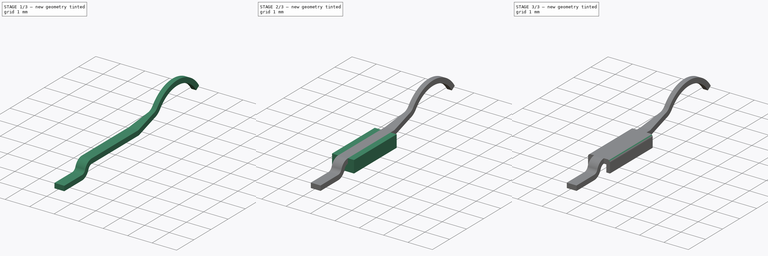
[diagram: build sequence overview — one tinted view per stage of 3, left to right]
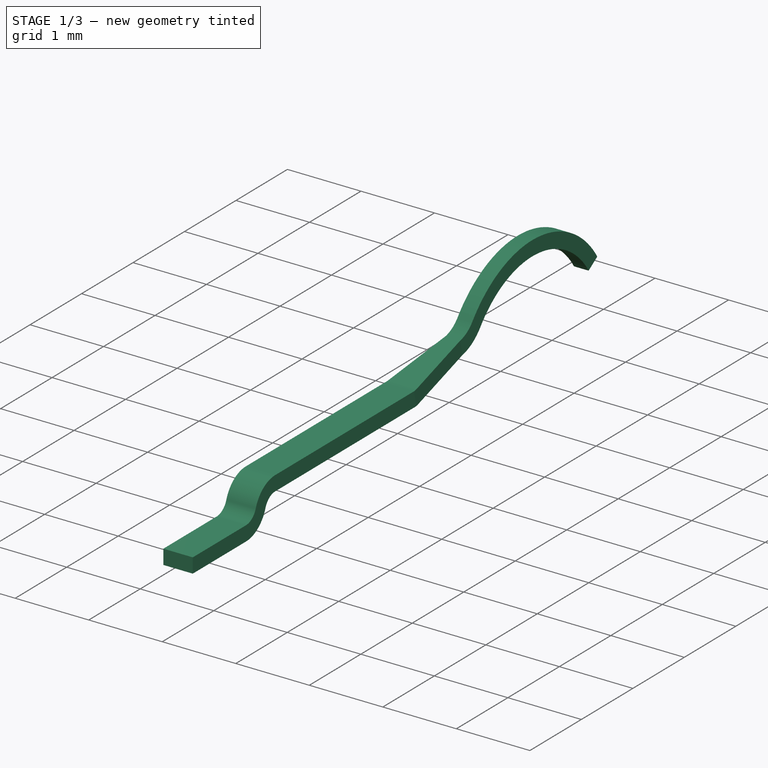
[diagram: stage 1 of 3 — iso view after this stage's code; geometry added in this stage tinted green]
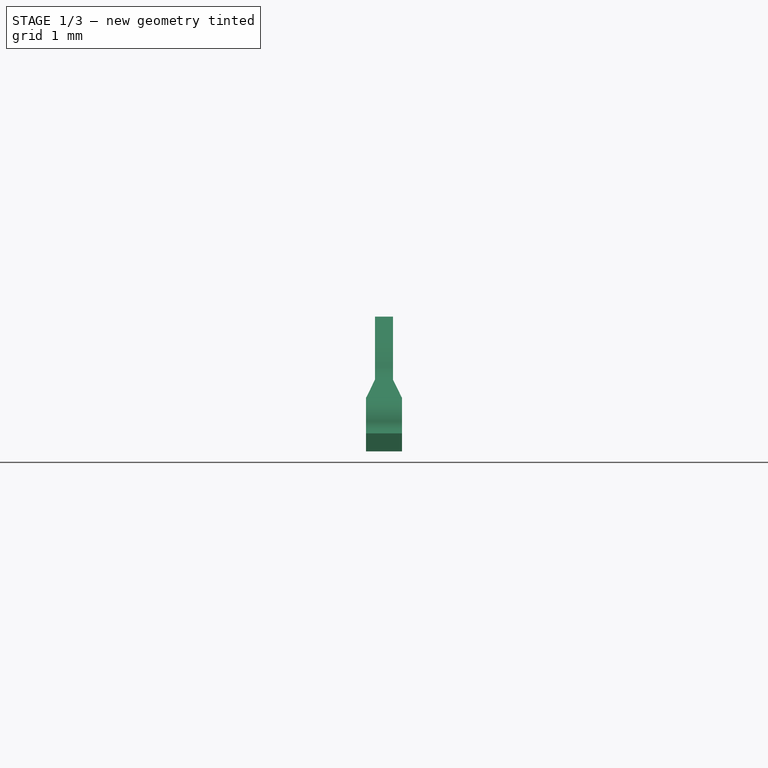
[diagram: stage 1 of 3 — front view after this stage's code; geometry added in this stage tinted green]
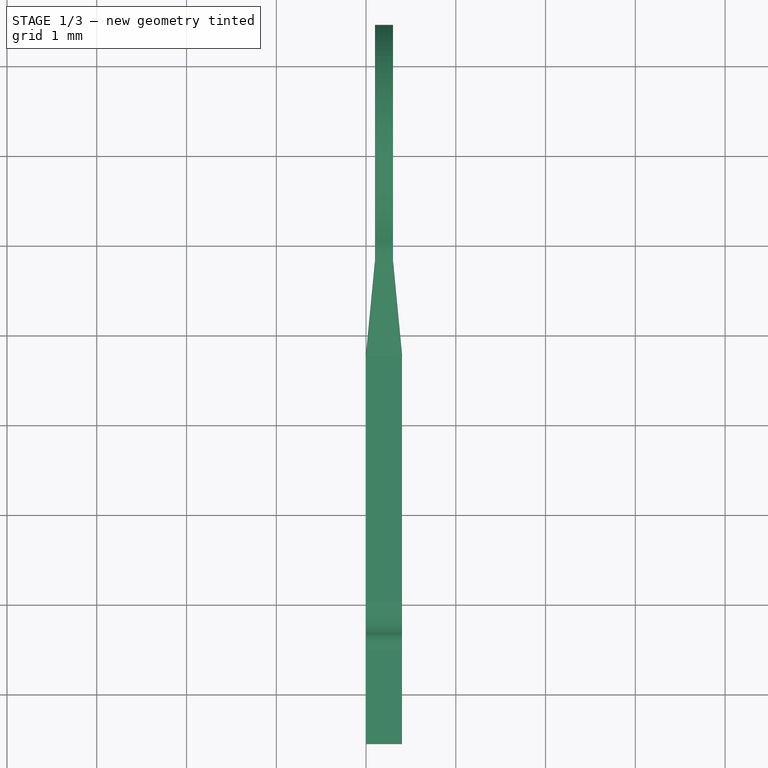
[diagram: stage 1 of 3 — top view after this stage's code; geometry added in this stage tinted green]
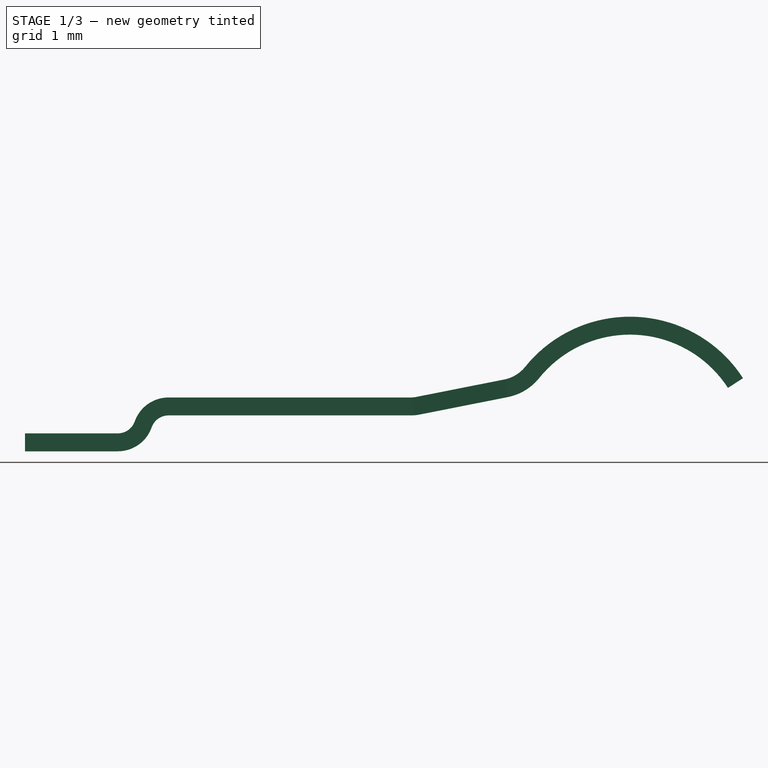
[diagram: stage 1 of 3 — right view after this stage's code; geometry added in this stage tinted green]
FCSTD DOCUMENT  (FreeCAD 0.17R12607 (Git))
Label: MR07C-06200 Pin
License: All rights reserved
LicenseURL: http://en.wikipedia.org/wiki/All_rights_reserved
objects: Sketcher::SketchObject×4, PartDesign::Pad×2, PartDesign::Pocket×2, PartDesign::Fillet×1, PartDesign::Body×1
note: 14 computed .brp shape members not serialized (recipe doc carries the construction recipe); baked Part::Feature solids carry a one-line shape summary decoded from their .brp

FEATURE [Sketcher::SketchObject] Sketch
  MapMode = 5
  Placement = pos=(0,0,0) rot=(0.57735,0.57735,0.57735;2.0944rad)
  Support = -> [YZ_Plane]
  sketch-geometry (19):
    g0: LineSegment StartX=-0.55 StartY=0 StartZ=0 EndX=0.484315 EndY=0 EndZ=0
    g1: LineSegment StartX=0.484311 StartY=0.2 StartZ=0 EndX=-0.55 EndY=0.2 EndZ=0
    g2: LineSegment StartX=-0.55 StartY=0.2 StartZ=0 EndX=-0.55 EndY=0 EndZ=0
    g3: ArcOfCircle CenterX=0.484315 CenterY=0.4 CenterZ=0 NormalX=0 NormalY=0 NormalZ=1 AngleXU=0 Radius=0.2 StartAngle=4.71237 EndAngle=5.94335
    g4: ArcOfCircle CenterX=0.484315 CenterY=0.4 CenterZ=0 NormalX=0 NormalY=0 NormalZ=1 AngleXU=0 Radius=0.4 StartAngle=4.71239 EndAngle=5.94333
    g5: LineSegment StartX=0.86144 StartY=0.266671 StartZ=0 EndX=0.861435 EndY=0.266658 EndZ=0
    g6: ArcOfCircle CenterX=1.05 CenterY=0.2 CenterZ=0 NormalX=0 NormalY=0 NormalZ=1 AngleXU=0 Radius=0.2 StartAngle=1.5708 EndAngle=2.80173
    g7: ArcOfCircle CenterX=1.05 CenterY=0.2 CenterZ=0 NormalX=0 NormalY=0 NormalZ=1 AngleXU=0 Radius=0.4 StartAngle=1.5708 EndAngle=2.80176
    g8: LineSegment StartX=1.05 StartY=0.6 StartZ=0 EndX=3.75 EndY=0.6 EndZ=0
    g9: LineSegment StartX=1.05 StartY=0.4 StartZ=0 EndX=3.75 EndY=0.4 EndZ=0
    g10: ArcOfCircle CenterX=3.75 CenterY=0.9 CenterZ=0 NormalX=0 NormalY=0 NormalZ=1 AngleXU=0 Radius=0.3 StartAngle=4.71239 EndAngle=4.90792
    g11: ArcOfCircle CenterX=3.75 CenterY=0.9 CenterZ=0 NormalX=0 NormalY=0 NormalZ=1 AngleXU=0 Radius=0.5 StartAngle=4.71239 EndAngle=4.90792
    g12: LineSegment StartX=3.80829 StartY=0.605716 StartZ=0 EndX=4.78923 EndY=0.8 EndZ=0
    g13: LineSegment StartX=3.84714 StartY=0.409527 StartZ=0 EndX=4.82809 EndY=0.603811 EndZ=0
    g14: ArcOfCircle CenterX=4.71152 CenterY=1.19238 CenterZ=0 NormalX=0 NormalY=0 NormalZ=1 AngleXU=0 Radius=0.4 StartAngle=4.90792 EndAngle=5.60476
    g15: ArcOfCircle CenterX=4.71152 CenterY=1.19238 CenterZ=0 NormalX=0 NormalY=0 NormalZ=1 AngleXU=0 Radius=0.6 StartAngle=4.90792 EndAngle=5.60475
    g16: ArcOfCircle CenterX=6.19079 CenterY=0 CenterZ=0 NormalX=0 NormalY=0 NormalZ=1 AngleXU=0 Radius=1.5 StartAngle=0.574477 EndAngle=2.46317
    g17: ArcOfCircle CenterX=6.19079 CenterY=0 CenterZ=0 NormalX=0 NormalY=0 NormalZ=1 AngleXU=0 Radius=1.3 StartAngle=0.574477 EndAngle=2.46317
    g18: LineSegment StartX=7.45 StartY=0.815094 StartZ=0 EndX=7.2821 EndY=0.706415 EndZ=0
  constraints (62):
    c: Coincident(g1,g2)
    c: Coincident(g2,g0)
    c: Horizontal(g0)
    c: Horizontal(g1)
    c: Vertical(g2)
    c: DistanceY(g0,g1) = 0.2
    c: Coincident(g4,g3)
    c: Coincident(g4,g0)
    c: Coincident(g5,g4)
    c: Tangent(g5,g4)
    c: Coincident(g6,g5)
    c: Coincident(g7,g6)
    c: Horizontal(g8)
    c: Coincident(g9,g6)
    c: Horizontal(g9)
    c: DistanceX(g8,g8) = 2.7
    c: Coincident(g8,g7)
    c: Equal(g8,g9)
    c: Tangent(g8,g7)
    c: Coincident(g10,g8)
    c: Coincident(g11,g10)
    c: Coincident(g11,g9)
    c: Tangent(g10,g8)
    c: Coincident(g12,g10)
    c: Coincident(g13,g11)
    c: Tangent(g12,g10)
    c: Parallel(g12,g13)
    c: Tangent(g13,g11)
    c: Equal(g12,g13)
    c: Coincident(g14,g12)
    c: Coincident(g15,g14)
    c: Coincident(g15,g13)
    c: Tangent(g14,g12)
    c: Coincident(g16,g14)
    c: Coincident(g17,g16)
    c: Coincident(g18,g16)
    c: Coincident(g18,g17)
    c: Coincident(g15,g17)
    c: Perpendicular(g16,g18)
    c: Distance(g6,g2) = 1.6
    c: DistanceX(g0) = -0.55
    c: DistanceY(g0) = 0
    c: Distance(g16,g2) = 8
    c: PointOnObject(g16,g-1)
    c: Radius(g15) = 0.6
    c: Radius(g6) = 0.2
    c: Coincident(g7,g3)
    c: Distance(g7,g-1) = 0.6
    c: DistanceY(g-1,g12) = 0.8
    c: Tangent(g11,g9)
    c: Distance(g13) = 1
    c: Tangent(g14,g16)
    c: Radius(g17) = 1.3
    c: Radius(g16) = 1.5
    c: Tangent(g4,g0)
    c: Radius(g3) = 0.2
    c: Tangent(g7,g3)
    c: Radius(g10) = 0.3
    c: Tangent(g5,g6)
    c: Coincident(g3,g1)
    c: Tangent(g3,g1)
    c: Radius(g7) = 0.4
FEATURE [PartDesign::Pad] Pad
  Length = 0.4
  Length2 = 100
  Placement = pos=(0,0,0) rot=(0.57735,0.57735,0.57735;2.0944rad)
  Profile = -> Sketch
  Type = 0
FEATURE [Sketcher::SketchObject] Sketch001
  ExternalGeometry = -> [Pad]
  MapMode = 5
  Placement = pos=(0,0.0283096,-0.142936) rot=(0.097146,0.097146,-0.990518;1.58032rad)
  Support = -> [Pad]
  sketch-geometry (8):
    g0: LineSegment StartX=-3.79512 StartY=0.4 StartZ=0 EndX=-4.8534 EndY=0.3 EndZ=0
    g1: LineSegment StartX=-4.8534 StartY=0.3 StartZ=0 EndX=-7.4664 EndY=0.3 EndZ=0
    g2: LineSegment StartX=-7.4664 StartY=0.3 StartZ=0 EndX=-7.4664 EndY=0.4 EndZ=0
    g3: LineSegment StartX=-7.4664 StartY=0.4 StartZ=0 EndX=-3.79512 EndY=0.4 EndZ=0
    g4: LineSegment StartX=-3.79512 StartY=0 StartZ=0 EndX=-4.8534 EndY=0.1 EndZ=0
    g5: LineSegment StartX=-4.8534 StartY=0.1 StartZ=0 EndX=-7.4664 EndY=0.1 EndZ=0
    g6: LineSegment StartX=-7.4664 StartY=0.1 StartZ=0 EndX=-7.4664 EndY=0 EndZ=0
    g7: LineSegment StartX=-7.4664 StartY=0 StartZ=0 EndX=-3.79512 EndY=0 EndZ=0
  constraints (20):
    c: Coincident(g-3,g0)
    c: PointOnObject(g0,g-4)
    c: Coincident(g0,g1)
    c: Horizontal(g1)
    c: Coincident(g1,g2)
    c: Coincident(g2,g-5)
    c: Coincident(g2,g3)
    c: Coincident(g3,g0)
    c: Coincident(g-3,g4)
    c: PointOnObject(g4,g-4)
    c: Coincident(g4,g5)
    c: PointOnObject(g5,g-5)
    c: Horizontal(g5)
    c: Coincident(g5,g6)
    c: Coincident(g6,g-5)
    c: Coincident(g6,g7)
    c: Coincident(g7,g4)
    c: PointOnObject(g2,g-5)
    c: Equal(g2,g6)
    c: Distance(g6) = 0.1
FEATURE [PartDesign::Pocket] Pocket
  BaseFeature = -> Pad
  Length = 5
  Midplane = true
  Placement = pos=(0,0,0) rot=(0.57735,0.57735,0.57735;2.0944rad)
  Profile = -> Sketch001
  Type = 1
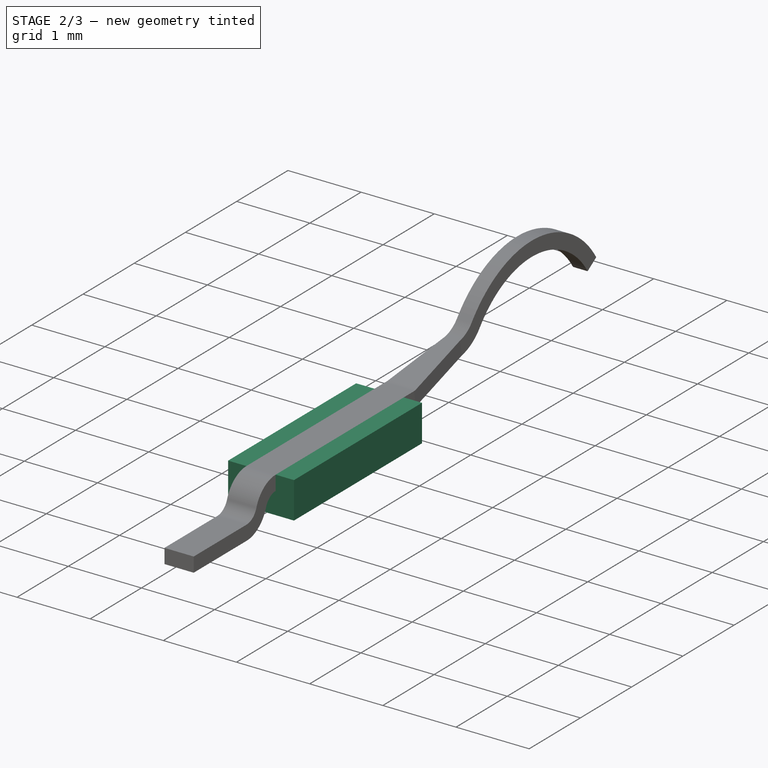
[diagram: stage 2 of 3 — iso view after this stage's code; geometry added in this stage tinted green]
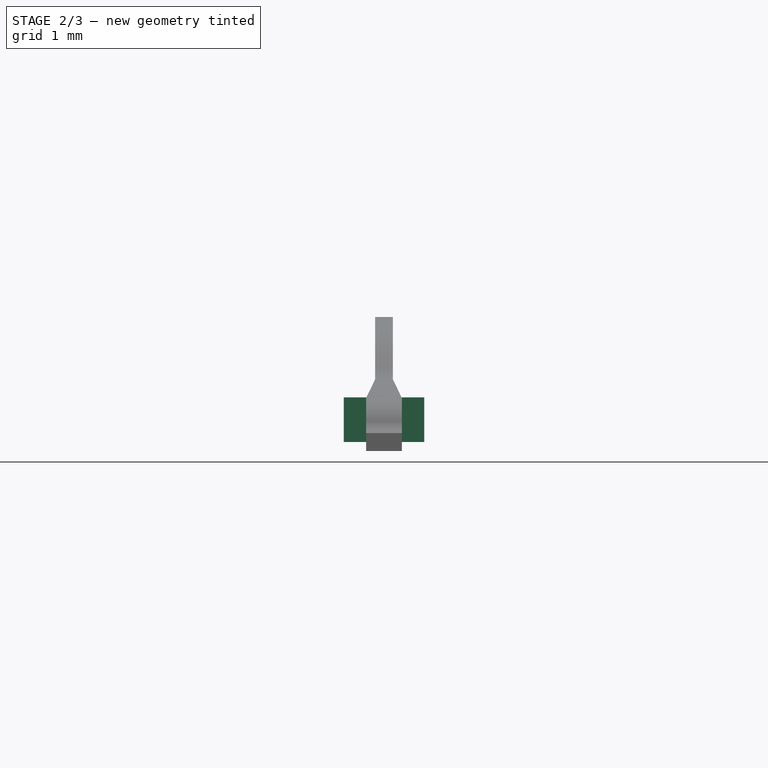
[diagram: stage 2 of 3 — front view after this stage's code; geometry added in this stage tinted green]
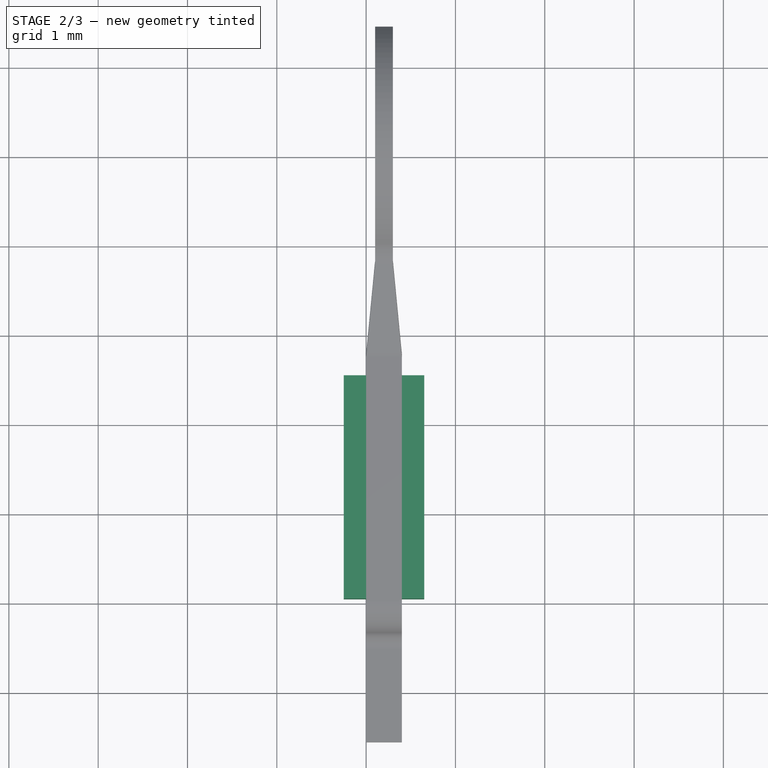
[diagram: stage 2 of 3 — top view after this stage's code; geometry added in this stage tinted green]
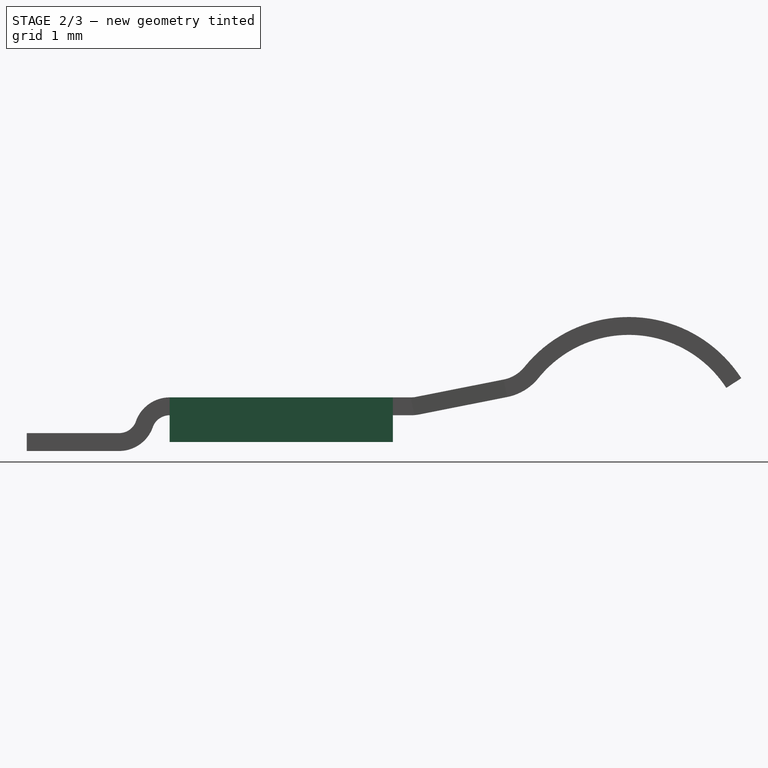
[diagram: stage 2 of 3 — right view after this stage's code; geometry added in this stage tinted green]
FEATURE [Sketcher::SketchObject] Sketch002
  ExternalGeometry = -> [Pocket]
  MapMode = 5
  Placement = pos=(0,0,0.6) rot=(0,0,-1;1.5708rad)
  Support = -> [Pocket]
  sketch-geometry (4):
    g0: LineSegment StartX=-3.55 StartY=-0.25 StartZ=0 EndX=-1.05 EndY=-0.25 EndZ=0
    g1: LineSegment StartX=-1.05 StartY=-0.25 StartZ=0 EndX=-1.05 EndY=0.65 EndZ=0
    g2: LineSegment StartX=-1.05 StartY=0.65 StartZ=0 EndX=-3.55 EndY=0.65 EndZ=0
    g3: LineSegment StartX=-3.55 StartY=0.65 StartZ=0 EndX=-3.55 EndY=-0.25 EndZ=0
  constraints (12):
    c: Coincident(g0,g1)
    c: Coincident(g1,g2)
    c: Coincident(g2,g3)
    c: Coincident(g3,g0)
    c: Horizontal(g0)
    c: Horizontal(g2)
    c: Vertical(g1)
    c: Vertical(g3)
    c: DistanceY(g3,g3) = 0.9
    c: Distance(g1,g-3) = 0.25
    c: Distance(g1,g-5) = 1.6
    c: DistanceX(g0,g0) = 2.5
FEATURE [PartDesign::Pad] Pad001
  BaseFeature = -> Pocket
  Length = 0.5
  Length2 = 100
  Placement = pos=(0,0,0) rot=(0.57735,0.57735,0.57735;2.0944rad)
  Profile = -> Sketch002
  Reversed = true
  Type = 0
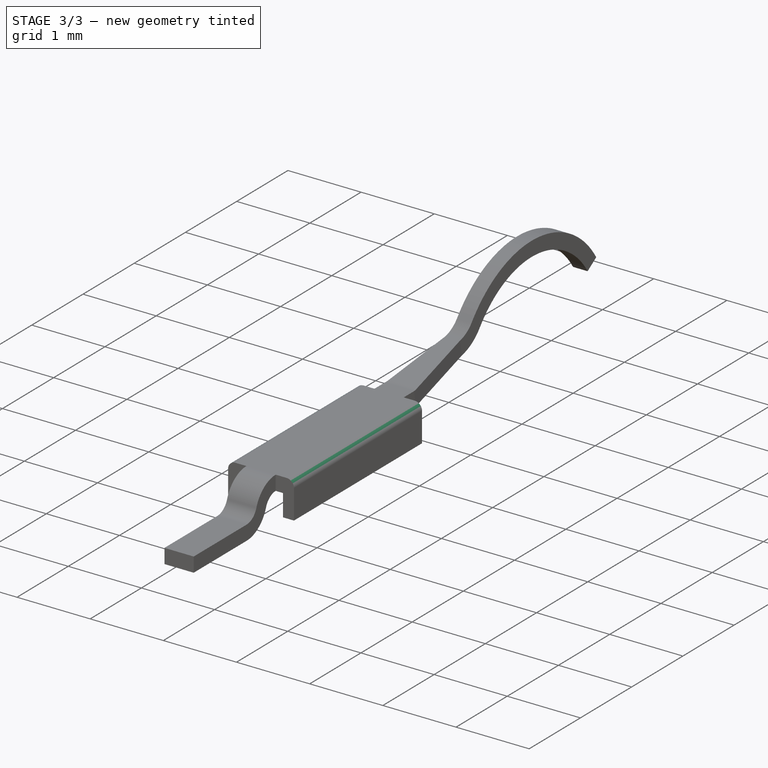
[diagram: stage 3 of 3 — iso view after this stage's code; geometry added in this stage tinted green]
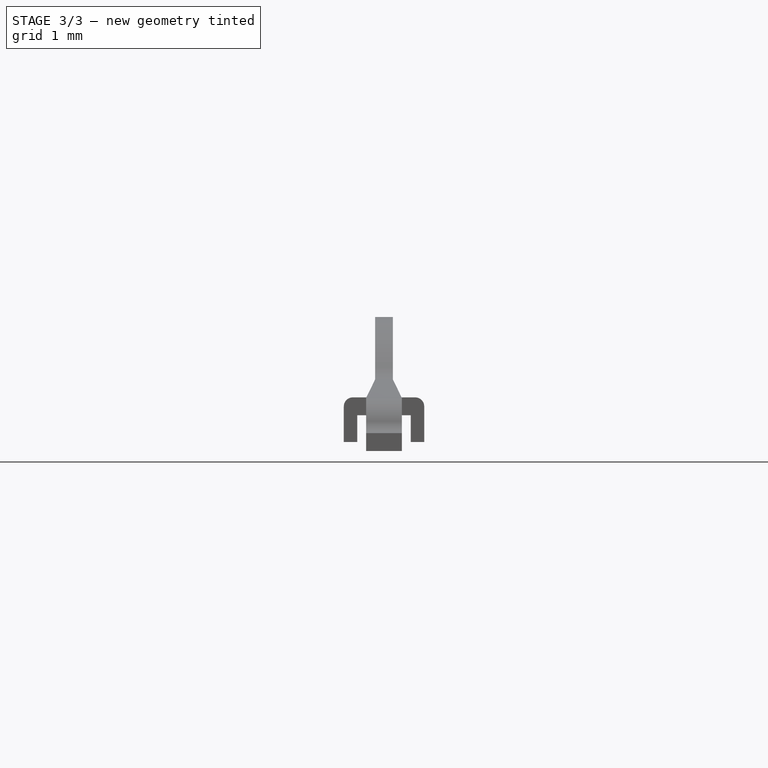
[diagram: stage 3 of 3 — front view after this stage's code; geometry added in this stage tinted green]
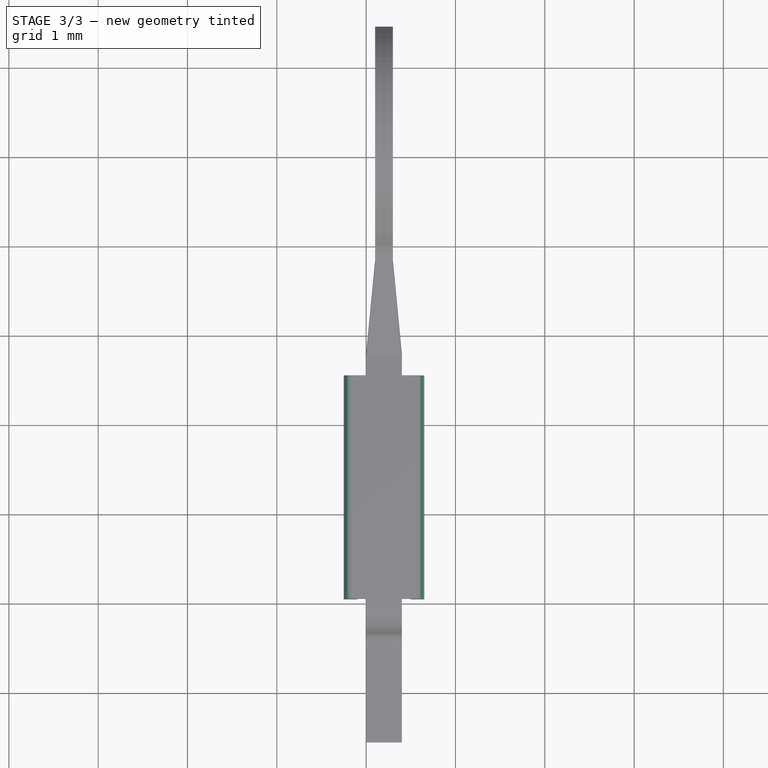
[diagram: stage 3 of 3 — top view after this stage's code; geometry added in this stage tinted green]
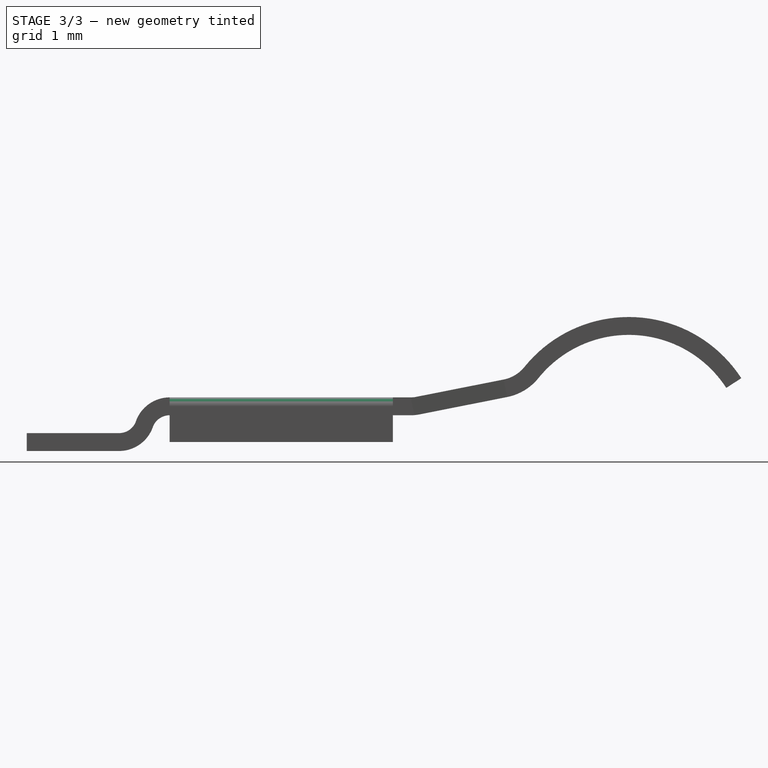
[diagram: stage 3 of 3 — right view after this stage's code; geometry added in this stage tinted green]
FEATURE [Sketcher::SketchObject] Sketch003
  ExternalGeometry = -> [Pad001]
  MapMode = 5
  Placement = pos=(0,0,0.1) rot=(0.707107,0.707107,0;3.14159rad)
  Support = -> [Pad001]
  sketch-geometry (4):
    g0: LineSegment StartX=1.05 StartY=0.5 StartZ=0 EndX=3.55 EndY=0.5 EndZ=0
    g1: LineSegment StartX=3.55 StartY=0.5 StartZ=0 EndX=3.55 EndY=-0.1 EndZ=0
    g2: LineSegment StartX=3.55 StartY=-0.1 StartZ=0 EndX=1.05 EndY=-0.1 EndZ=0
    g3: LineSegment StartX=1.05 StartY=-0.1 StartZ=0 EndX=1.05 EndY=0.5 EndZ=0
  constraints (12):
    c: Coincident(g0,g1)
    c: Coincident(g1,g2)
    c: Coincident(g2,g3)
    c: Coincident(g3,g0)
    c: Horizontal(g0)
    c: Horizontal(g2)
    c: Vertical(g1)
    c: Vertical(g3)
    c: DistanceY(g1,g1) = 0.6
    c: PointOnObject(g0,g-5)
    c: PointOnObject(g0,g-6)
    c: Distance(g1,g-4) = 0.15
FEATURE [PartDesign::Pocket] Pocket001
  BaseFeature = -> Pad001
  Length = 0.3
  Placement = pos=(0,0,0) rot=(0.57735,0.57735,0.57735;2.0944rad)
  Profile = -> Sketch003
  Type = 0
FEATURE [PartDesign::Fillet] Fillet
  Base = -> Pocket001 [Edge53,Edge46]
  BaseFeature = -> Pocket001
  Placement = pos=(0,0,0) rot=(0.57735,0.57735,0.57735;2.0944rad)
  Radius = 0.1
FEATURE [PartDesign::Body] Body
  Group = -> [Sketch,Pad,Sketch001,Pocket,Sketch002,Pad001,Sketch003,Pocket001,Fillet]
  Origin = -> Origin
  Placement = pos=(-0.2,0,0) rot=(0,0,1;0rad)
  Tip = -> Fillet
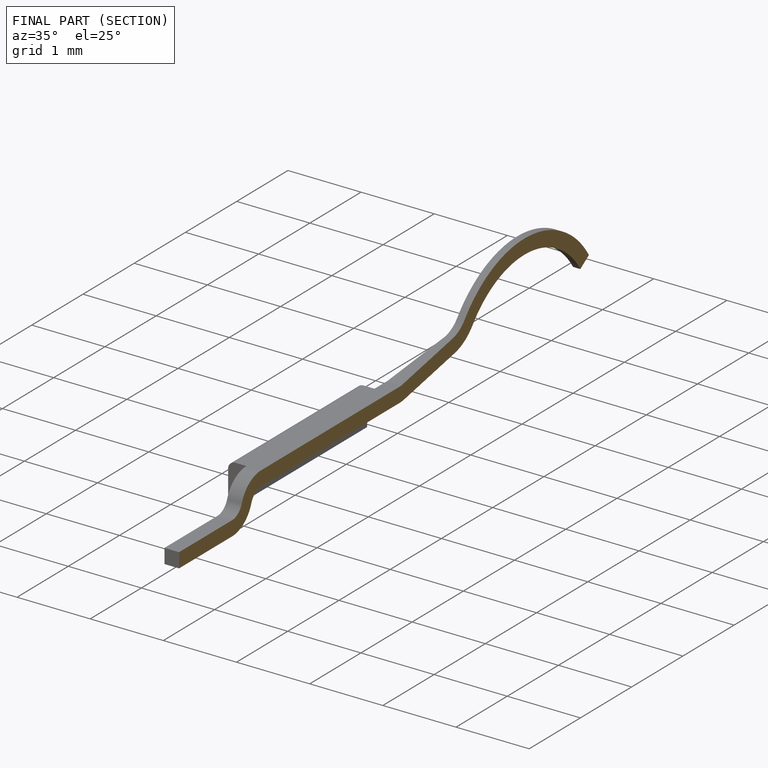
[diagram: finished part — half-section view (interior)]
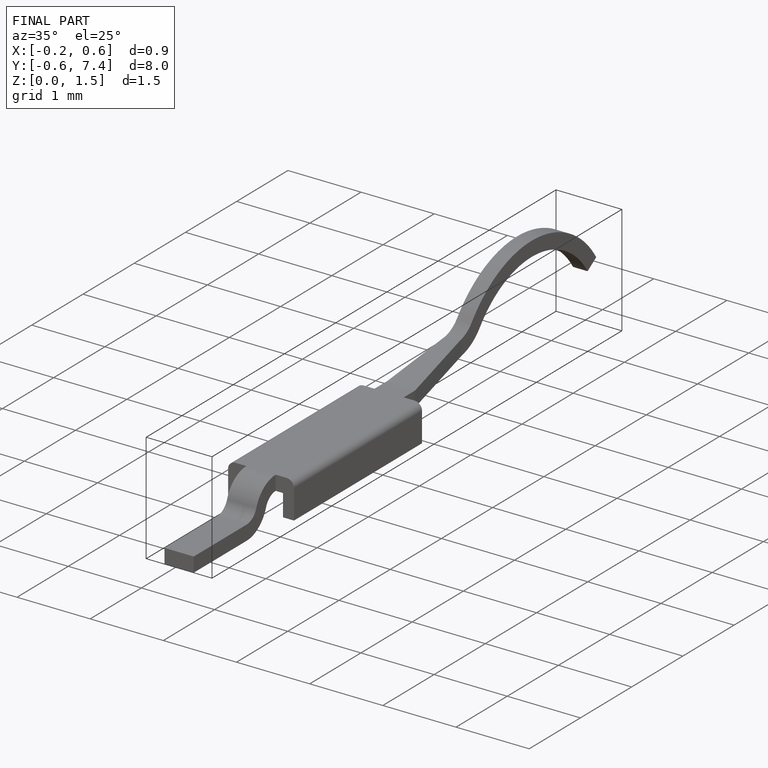
[diagram: finished part — iso view with bounding-box wireframe]
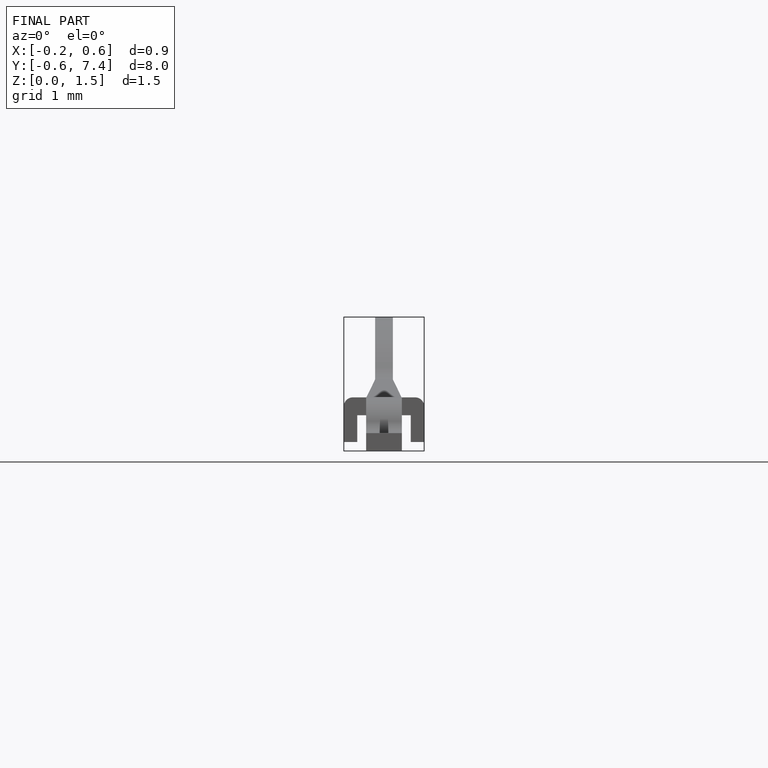
[diagram: finished part — front view with bounding-box wireframe]
